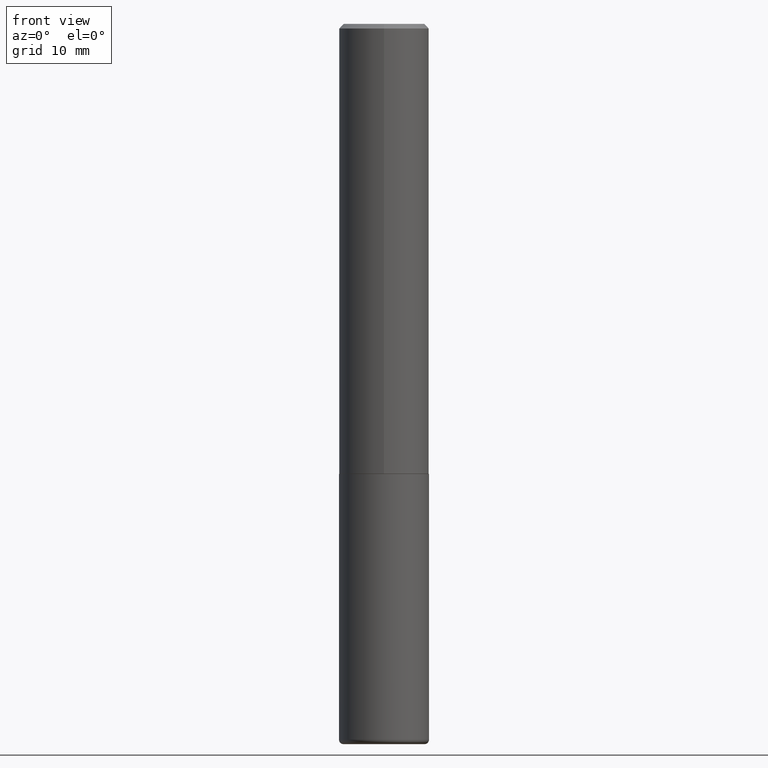
[diagram: clean part render]
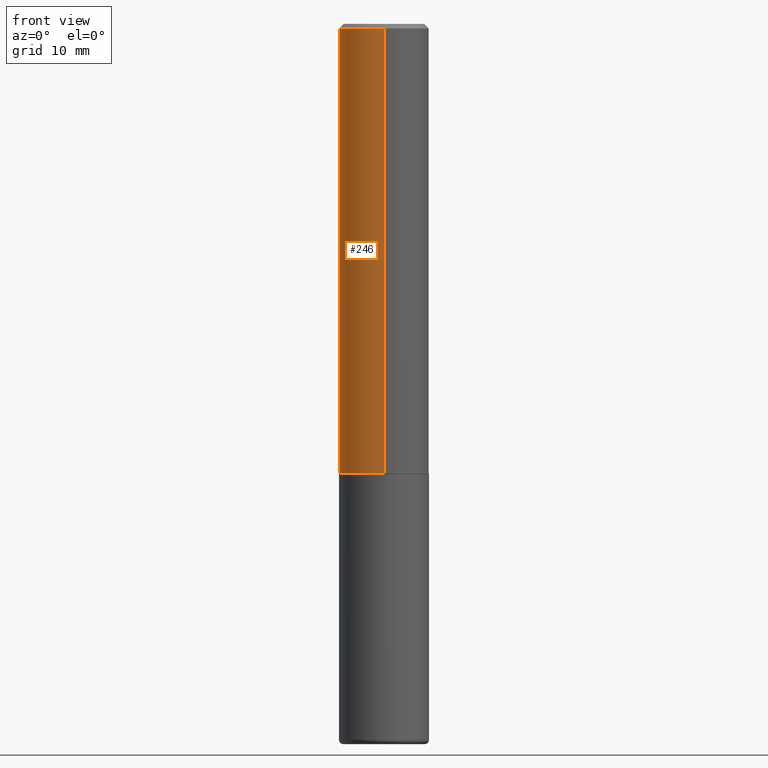
[diagram: same view with one face highlighted and labeled with its STEP entity id]
A machine part, front view. The second image highlights one B-rep face of the part: STEP entity #246.
In plain terms, the highlighted cylindrical surface (partial cylindrical patch) has radius 5 mm, axis along (-0, 0, 1).
Its self-contained STEP definition (entity closure, byte-faithful):
#33 = DIRECTION ( 'NONE',  ( -2.445268841296851437E-29, 3.491767699944464545E-15, 1.000000000000000000 ) ) ;
#36 = VERTEX_POINT ( 'NONE', #138 ) ;
#39 = DIRECTION ( 'NONE',  ( -2.445268841296851437E-29, 3.491767699944464940E-15, 1.000000000000000000 ) ) ;
#55 = CARTESIAN_POINT ( 'NONE',  ( 1.398703375343782440E-15, 0.1968499999999933914, -1.967500000000000471 ) ) ;
#60 = DIRECTION ( 'NONE',  ( -2.445268841296851437E-29, 3.491767699944464545E-15, 1.000000000000000000 ) ) ;
#61 = CIRCLE ( 'NONE', #218, 0.1968500000000002470 ) ;
#87 = FACE_OUTER_BOUND ( 'NONE', #228, .T. ) ;
#93 = EDGE_CURVE ( 'NONE', #36, #310, #239, .T. ) ;
#101 = VERTEX_POINT ( 'NONE', #121 ) ;
#117 = VERTEX_POINT ( 'NONE', #55 ) ;
#121 = CARTESIAN_POINT ( 'NONE',  ( 1.374596203102542200E-15, 0.1968499999999999694, -0.02000000000000072900 ) ) ;
#122 = AXIS2_PLACEMENT_3D ( 'NONE', #355, #60, #320 ) ;
#126 = CIRCLE ( 'NONE', #122, 0.1968500000000000527 ) ;
#131 = DIRECTION ( 'NONE',  ( -2.445268841296851437E-29, 3.491767699944464545E-15, 1.000000000000000000 ) ) ;
#138 = CARTESIAN_POINT ( 'NONE',  ( -1.374596203102495065E-15, -0.1968500000000071026, -1.967499999999998916 ) ) ;
#140 = CARTESIAN_POINT ( 'NONE',  ( 0.000000000000000000, 0.000000000000000000, 0.000000000000000000 ) ) ;
#142 = ORIENTED_EDGE ( 'NONE', *, *, #396, .F. ) ;
#150 = VECTOR ( 'NONE', #39, 39.37007874015748143 ) ;
#156 = AXIS2_PLACEMENT_3D ( 'NONE', #140, #33, #417 ) ;
#183 = EDGE_CURVE ( 'NONE', #117, #101, #301, .T. ) ;
#213 = ORIENTED_EDGE ( 'NONE', *, *, #183, .F. ) ;
#215 = CYLINDRICAL_SURFACE ( 'NONE', #156, 0.1968500000000001360 ) ;
#217 = CARTESIAN_POINT ( 'NONE',  ( -1.350489030861325626E-15, -0.1968500000000001082, -0.01999999999999935510 ) ) ;
#218 = AXIS2_PLACEMENT_3D ( 'NONE', #292, #131, #356 ) ;
#228 = EDGE_LOOP ( 'NONE', ( #213, #346, #255, #142 ) ) ;
#239 = LINE ( 'NONE', #326, #150 ) ;
#246 = ADVANCED_FACE ( 'NONE', ( #87 ), #215, .T. ) ;
#255 = ORIENTED_EDGE ( 'NONE', *, *, #93, .T. ) ;
#265 = EDGE_CURVE ( 'NONE', #117, #36, #61, .T. ) ;
#292 = CARTESIAN_POINT ( 'NONE',  ( 4.811066445251554069E-29, -6.870052949640732965E-15, -1.967499999999999805 ) ) ;
#297 = CARTESIAN_POINT ( 'NONE',  ( 1.398703375343757985E-15, 0.1968500000000001360, -6.873544717340683232E-16 ) ) ;
#301 = LINE ( 'NONE', #297, #312 ) ;
#310 = VERTEX_POINT ( 'NONE', #217 ) ;
#312 = VECTOR ( 'NONE', #394, 39.37007874015748143 ) ;
#320 = DIRECTION ( 'NONE',  ( -6.982962677686265133E-15, -1.000000000000000000, 3.491137977679279029E-15 ) ) ;
#326 = CARTESIAN_POINT ( 'NONE',  ( -1.374596203102542397E-15, -0.1968500000000001360, 6.873544717340683232E-16 ) ) ;
#346 = ORIENTED_EDGE ( 'NONE', *, *, #265, .T. ) ;
#355 = CARTESIAN_POINT ( 'NONE',  ( 4.890537682593712927E-31, -6.983535399888942699E-17, -0.02000000000000004205 ) ) ;
#356 = DIRECTION ( 'NONE',  ( -6.982962677686265922E-15, -1.000000000000000000, 4.163344669033670112E-15 ) ) ;
#394 = DIRECTION ( 'NONE',  ( -2.445268841296851437E-29, 3.491767699944464940E-15, 1.000000000000000000 ) ) ;
#396 = EDGE_CURVE ( 'NONE', #101, #310, #126, .T. ) ;
#417 = DIRECTION ( 'NONE',  ( -6.982962677686265922E-15, -1.000000000000000000, 3.491767699944464545E-15 ) ) ;